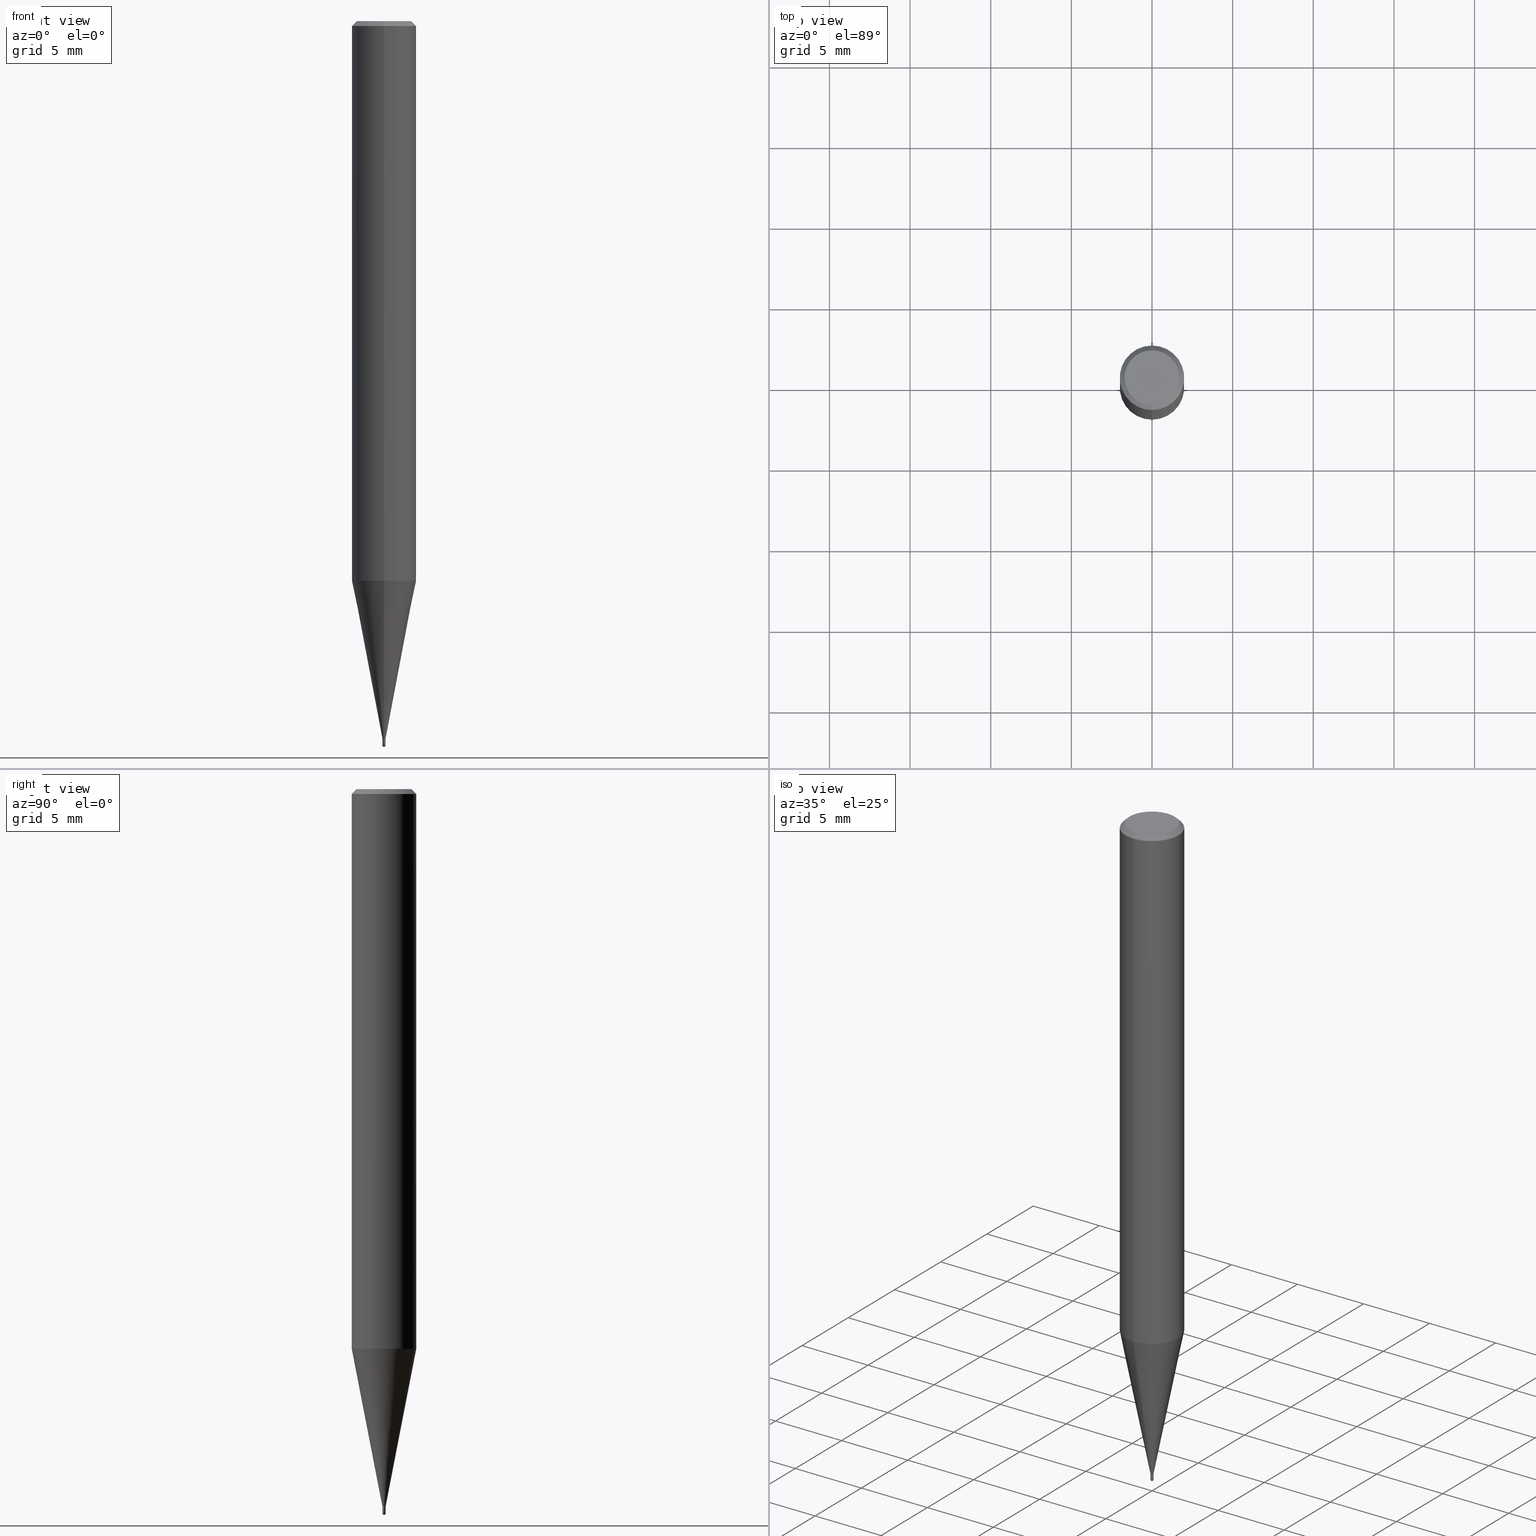
[diagram: canonical four-view strip — front | top / right | iso, engineering-drawing reading convention]
A machine part, canonical four-view strip (front | top / right | iso — engineering-drawing reading convention). The complete STEP part file that produces these views, byte-faithful:
ISO-10303-21;
HEADER;
FILE_DESCRIPTION(('no description'),'unknown implementation level');
FILE_NAME('CSELB2002-005-Huellk.stp','  ',('CIMSOURCE GmbH'),('CADClick - KiM GmbH - www.kimweb.de'),'unknown preprocess','ACIS','unknown authorization');
FILE_SCHEMA(('automotive_design'));
ENDSEC;
DATA;
#1=MECHANICAL_DESIGN_GEOMETRIC_PRESENTATION_REPRESENTATION(' ',(#14,#15,#16,#17,#18,#19,#20,#21,#22,#23,#24,#25,#26,#27,#28,#29,#30,#31,#32,#33,#34,#35,#36,#37,#38,#39,#40,#41,#42,#43,#44,#45,#46,#47,#48,#49,#50,#51,#52,#53,#54,#55,#56,#57,#58,#59,#60,#61,#62,#63,#64,#65,#66,#67,#68,#69,#70,#71,#72,#73,#74),#10);
#2=PRODUCT_DEFINITION_CONTEXT('',#75,'design');
#3=APPLICATION_PROTOCOL_DEFINITION('INTERNATIONAL STANDARD','automotive_design',1994,#75);
#4=PRODUCT_CATEGORY_RELATIONSHIP('NONE','NONE',#76,#77);
#5=SHAPE_DEFINITION_REPRESENTATION(#78,#79);
#6=PRODUCT_DEFINITION_CONTEXT('',#80,'design');
#7=APPLICATION_PROTOCOL_DEFINITION('INTERNATIONAL STANDARD','automotive_design',1994,#80);
#8=PRODUCT_CATEGORY_RELATIONSHIP('NONE','NONE',#81,#82);
#9=SHAPE_DEFINITION_REPRESENTATION(#83,#84);
#10= (GEOMETRIC_REPRESENTATION_CONTEXT(3)GLOBAL_UNCERTAINTY_ASSIGNED_CONTEXT((#87))GLOBAL_UNIT_ASSIGNED_CONTEXT((#89,#90,#91))REPRESENTATION_CONTEXT('NONE','WORKSPACE'));
#14=STYLED_ITEM('',(#93),#94);
#15=STYLED_ITEM('',(#95),#96);
#16=STYLED_ITEM('',(#97),#98);
#17=STYLED_ITEM('',(#99),#100);
#18=STYLED_ITEM('',(#101),#102);
#19=STYLED_ITEM('',(#103),#104);
#20=STYLED_ITEM('',(#105),#106);
#21=STYLED_ITEM('',(#107),#108);
#22=STYLED_ITEM('',(#109),#110);
#23=STYLED_ITEM('',(#111),#112);
#24=STYLED_ITEM('',(#113),#114);
#25=STYLED_ITEM('',(#115),#116);
#26=STYLED_ITEM('',(#117),#118);
#27=STYLED_ITEM('',(#119),#120);
#28=STYLED_ITEM('',(#121),#122);
#29=STYLED_ITEM('',(#123),#124);
#30=STYLED_ITEM('',(#125),#126);
#31=STYLED_ITEM('',(#127),#128);
#32=STYLED_ITEM('',(#129),#130);
#33=STYLED_ITEM('',(#131),#132);
#34=STYLED_ITEM('',(#133),#134);
#35=STYLED_ITEM('',(#135),#136);
#36=STYLED_ITEM('',(#137),#138);
#37=STYLED_ITEM('',(#139),#140);
#38=STYLED_ITEM('',(#141),#142);
#39=STYLED_ITEM('',(#143),#144);
#40=STYLED_ITEM('',(#145),#146);
#41=STYLED_ITEM('',(#147),#148);
#42=STYLED_ITEM('',(#149),#150);
#43=STYLED_ITEM('',(#151),#152);
#44=STYLED_ITEM('',(#153),#154);
#45=STYLED_ITEM('',(#155),#156);
#46=STYLED_ITEM('',(#157),#158);
#47=STYLED_ITEM('',(#159),#160);
#48=STYLED_ITEM('',(#161),#162);
#49=STYLED_ITEM('',(#163),#164);
#50=STYLED_ITEM('',(#165),#166);
#51=STYLED_ITEM('',(#167),#168);
#52=STYLED_ITEM('',(#169),#170);
#53=STYLED_ITEM('',(#171),#172);
#54=STYLED_ITEM('',(#173),#174);
#55=STYLED_ITEM('',(#175),#176);
#56=STYLED_ITEM('',(#177),#178);
#57=STYLED_ITEM('',(#179),#180);
#58=STYLED_ITEM('',(#181),#182);
#59=STYLED_ITEM('',(#183),#184);
#60=STYLED_ITEM('',(#185),#186);
#61=STYLED_ITEM('',(#187),#188);
#62=STYLED_ITEM('',(#189),#190);
#63=STYLED_ITEM('',(#191),#192);
#64=STYLED_ITEM('',(#193),#194);
#65=STYLED_ITEM('',(#195),#196);
#66=STYLED_ITEM('',(#197),#198);
#67=STYLED_ITEM('',(#199),#200);
#68=STYLED_ITEM('',(#201),#202);
#69=STYLED_ITEM('',(#203),#204);
#70=STYLED_ITEM('',(#205),#206);
#71=STYLED_ITEM('',(#207),#208);
#72=STYLED_ITEM('',(#209),#210);
#73=STYLED_ITEM('',(#211),#212);
#74=STYLED_ITEM('',(#213),#214);
#75=APPLICATION_CONTEXT(' ');
#76=PRODUCT_CATEGORY('part','NONE');
#77=PRODUCT_RELATED_PRODUCT_CATEGORY('detail',' ',(#215));
#78=PRODUCT_DEFINITION_SHAPE('NONE','NONE',#216);
#79=ADVANCED_BREP_SHAPE_REPRESENTATION('1',(#200,#217),#10);
#80=APPLICATION_CONTEXT(' ');
#81=PRODUCT_CATEGORY('part','NONE');
#82=PRODUCT_RELATED_PRODUCT_CATEGORY('detail',' ',(#218));
#83=PRODUCT_DEFINITION_SHAPE('NONE','NONE',#219);
#84=ADVANCED_BREP_SHAPE_REPRESENTATION('2',(#194,#220),#10);
#87=UNCERTAINTY_MEASURE_WITH_UNIT(LENGTH_MEASURE(1.0E-006),#89,'','');
#89= (CONVERSION_BASED_UNIT('MILLIMETRE',#223)LENGTH_UNIT()NAMED_UNIT(#226));
#90= (NAMED_UNIT(#228)PLANE_ANGLE_UNIT()SI_UNIT($,.RADIAN.));
#91= (NAMED_UNIT(#228)SOLID_ANGLE_UNIT()SI_UNIT($,.STERADIAN.));
#93=PRESENTATION_STYLE_ASSIGNMENT((#234));
#94=EDGE_CURVE('',#134,#150,#235,.T.);
#95=PRESENTATION_STYLE_ASSIGNMENT((#236));
#96=ADVANCED_FACE('',(#237),#238,.T.);
#97=PRESENTATION_STYLE_ASSIGNMENT((#239));
#98=VERTEX_POINT('',#240);
#99=PRESENTATION_STYLE_ASSIGNMENT((#241));
#100=EDGE_CURVE('',#98,#170,#242,.T.);
#101=PRESENTATION_STYLE_ASSIGNMENT((#243));
#102=EDGE_CURVE('',#106,#114,#244,.T.);
#103=PRESENTATION_STYLE_ASSIGNMENT((#245));
#104=EDGE_CURVE('',#180,#186,#246,.T.);
#105=PRESENTATION_STYLE_ASSIGNMENT((#247));
#106=VERTEX_POINT('',#248);
#107=PRESENTATION_STYLE_ASSIGNMENT((#249));
#108=EDGE_CURVE('',#132,#142,#250,.T.);
#109=PRESENTATION_STYLE_ASSIGNMENT((#251));
#110=ADVANCED_FACE('',(#252,#253),#254,.T.);
#111=PRESENTATION_STYLE_ASSIGNMENT((#255));
#112=EDGE_CURVE('',#140,#158,#256,.T.);
#113=PRESENTATION_STYLE_ASSIGNMENT((#257));
#114=VERTEX_POINT('',#258);
#115=PRESENTATION_STYLE_ASSIGNMENT((#259));
#116=EDGE_CURVE('',#98,#158,#260,.T.);
#117=PRESENTATION_STYLE_ASSIGNMENT((#261));
#118=EDGE_CURVE('',#158,#140,#262,.T.);
#119=PRESENTATION_STYLE_ASSIGNMENT((#263));
#120=EDGE_CURVE('',#98,#170,#264,.T.);
#121=PRESENTATION_STYLE_ASSIGNMENT((#265));
#122=EDGE_CURVE('',#126,#212,#266,.T.);
#123=PRESENTATION_STYLE_ASSIGNMENT((#267));
#124=EDGE_CURVE('',#142,#166,#268,.T.);
#125=PRESENTATION_STYLE_ASSIGNMENT((#269));
#126=VERTEX_POINT('',#270);
#127=PRESENTATION_STYLE_ASSIGNMENT((#271));
#128=EDGE_CURVE('',#166,#180,#272,.T.);
#129=PRESENTATION_STYLE_ASSIGNMENT((#273));
#130=EDGE_CURVE('',#180,#166,#274,.T.);
#131=PRESENTATION_STYLE_ASSIGNMENT((#275));
#132=VERTEX_POINT('',#276);
#133=PRESENTATION_STYLE_ASSIGNMENT((#277));
#134=VERTEX_POINT('',#278);
#135=PRESENTATION_STYLE_ASSIGNMENT((#279));
#136=ADVANCED_FACE('',(#280),#281,.T.);
#137=PRESENTATION_STYLE_ASSIGNMENT((#282));
#138=ADVANCED_FACE('',(#283),#284,.T.);
#139=PRESENTATION_STYLE_ASSIGNMENT((#285));
#140=VERTEX_POINT('',#286);
#141=PRESENTATION_STYLE_ASSIGNMENT((#287));
#142=VERTEX_POINT('',#288);
#143=PRESENTATION_STYLE_ASSIGNMENT((#289));
#144=ADVANCED_FACE('',(#290),#291,.T.);
#145=PRESENTATION_STYLE_ASSIGNMENT((#292));
#146=ADVANCED_FACE('',(#293),#294,.T.);
#147=PRESENTATION_STYLE_ASSIGNMENT((#295));
#148=EDGE_CURVE('',#114,#134,#296,.T.);
#149=PRESENTATION_STYLE_ASSIGNMENT((#297));
#150=VERTEX_POINT('',#298);
#151=PRESENTATION_STYLE_ASSIGNMENT((#299));
#152=ADVANCED_FACE('',(#300),#301,.T.);
#153=PRESENTATION_STYLE_ASSIGNMENT((#302));
#154=ADVANCED_FACE('',(#303),#304,.T.);
#155=PRESENTATION_STYLE_ASSIGNMENT((#305));
#156=EDGE_CURVE('',#170,#98,#306,.T.);
#157=PRESENTATION_STYLE_ASSIGNMENT((#307));
#158=VERTEX_POINT('',#308);
#159=PRESENTATION_STYLE_ASSIGNMENT((#309));
#160=EDGE_CURVE('',#150,#106,#310,.T.);
#161=PRESENTATION_STYLE_ASSIGNMENT((#311));
#162=EDGE_CURVE('',#150,#212,#312,.T.);
#163=PRESENTATION_STYLE_ASSIGNMENT((#313));
#164=EDGE_CURVE('',#206,#132,#314,.T.);
#165=PRESENTATION_STYLE_ASSIGNMENT((#315));
#166=VERTEX_POINT('',#316);
#167=PRESENTATION_STYLE_ASSIGNMENT((#317));
#168=ADVANCED_FACE('',(#318),#319,.T.);
#169=PRESENTATION_STYLE_ASSIGNMENT((#320));
#170=VERTEX_POINT('',#321);
#171=PRESENTATION_STYLE_ASSIGNMENT((#322));
#172=ADVANCED_FACE('',(#323),#324,.T.);
#173=PRESENTATION_STYLE_ASSIGNMENT((#325));
#174=ADVANCED_FACE('',(#326),#327,.T.);
#175=PRESENTATION_STYLE_ASSIGNMENT((#328));
#176=EDGE_CURVE('',#142,#186,#329,.T.);
#177=PRESENTATION_STYLE_ASSIGNMENT((#330));
#178=ADVANCED_FACE('',(#331),#332,.T.);
#179=PRESENTATION_STYLE_ASSIGNMENT((#333));
#180=VERTEX_POINT('',#334);
#181=PRESENTATION_STYLE_ASSIGNMENT((#335));
#182=EDGE_CURVE('',#212,#126,#336,.T.);
#183=PRESENTATION_STYLE_ASSIGNMENT((#337));
#184=EDGE_CURVE('',#134,#114,#338,.T.);
#185=PRESENTATION_STYLE_ASSIGNMENT((#339));
#186=VERTEX_POINT('',#340);
#187=PRESENTATION_STYLE_ASSIGNMENT((#341));
#188=EDGE_CURVE('',#132,#206,#342,.T.);
#189=PRESENTATION_STYLE_ASSIGNMENT((#343));
#190=EDGE_CURVE('',#186,#142,#344,.T.);
#191=PRESENTATION_STYLE_ASSIGNMENT((#345));
#192=EDGE_CURVE('',#140,#170,#346,.T.);
#193=PRESENTATION_STYLE_ASSIGNMENT((#347));
#194=MANIFOLD_SOLID_BREP('2',#348);
#195=PRESENTATION_STYLE_ASSIGNMENT((#349));
#196=ADVANCED_FACE('',(#350),#351,.T.);
#197=PRESENTATION_STYLE_ASSIGNMENT((#352));
#198=EDGE_CURVE('',#126,#106,#353,.T.);
#199=PRESENTATION_STYLE_ASSIGNMENT((#354));
#200=MANIFOLD_SOLID_BREP('1',#355);
#201=PRESENTATION_STYLE_ASSIGNMENT((#356));
#202=EDGE_CURVE('',#106,#150,#357,.T.);
#203=PRESENTATION_STYLE_ASSIGNMENT((#358));
#204=EDGE_CURVE('',#186,#206,#359,.T.);
#205=PRESENTATION_STYLE_ASSIGNMENT((#360));
#206=VERTEX_POINT('',#361);
#207=PRESENTATION_STYLE_ASSIGNMENT((#362));
#208=ADVANCED_FACE('',(#363),#364,.T.);
#209=PRESENTATION_STYLE_ASSIGNMENT((#365));
#210=ADVANCED_FACE('',(#366),#367,.T.);
#211=PRESENTATION_STYLE_ASSIGNMENT((#368));
#212=VERTEX_POINT('',#369);
#213=PRESENTATION_STYLE_ASSIGNMENT((#370));
#214=ADVANCED_FACE('',(#371),#372,.T.);
#215=PRODUCT('1','1','PART-1-DESC',(#373));
#216=PRODUCT_DEFINITION('NONE','NONE',#374,#2);
#217=AXIS2_PLACEMENT_3D('',#375,#376,#377);
#218=PRODUCT('2','2','PART-2-DESC',(#378));
#219=PRODUCT_DEFINITION('NONE','NONE',#379,#6);
#220=AXIS2_PLACEMENT_3D('',#380,#381,#382);
#223=LENGTH_MEASURE_WITH_UNIT(LENGTH_MEASURE(1.0),#383);
#226=DIMENSIONAL_EXPONENTS(1.0,0.0,0.0,0.0,0.0,0.0,0.0);
#228=DIMENSIONAL_EXPONENTS(0.0,0.0,0.0,0.0,0.0,0.0,0.0);
#234=CURVE_STYLE('',#384,POSITIVE_LENGTH_MEASURE(1.0E-006),#385);
#235=LINE('',#386,#387);
#236=SURFACE_STYLE_USAGE(.BOTH.,#388);
#237=FACE_OUTER_BOUND('',#389,.T.);
#238=CYLINDRICAL_SURFACE('',#390,0.09495);
#239=POINT_STYLE(' ',#391,POSITIVE_LENGTH_MEASURE(1.0E-006),#392);
#240=CARTESIAN_POINT('',(1.22460635382238E-017,-0.1,-44.9));
#241=CURVE_STYLE('',#393,POSITIVE_LENGTH_MEASURE(1.0E-006),#394);
#242=CIRCLE('',#395,0.1);
#243=CURVE_STYLE('',#396,POSITIVE_LENGTH_MEASURE(1.0E-006),#397);
#244=LINE('',#398,#399);
#245=CURVE_STYLE('',#400,POSITIVE_LENGTH_MEASURE(1.0E-006),#401);
#246=LINE('',#402,#403);
#247=POINT_STYLE(' ',#404,POSITIVE_LENGTH_MEASURE(1.0E-006),#405);
#248=CARTESIAN_POINT('',(0.0,0.09495,-44.5));
#249=CURVE_STYLE('',#406,POSITIVE_LENGTH_MEASURE(1.0E-006),#407);
#250=LINE('',#408,#409);
#251=SURFACE_STYLE_USAGE(.BOTH.,#410);
#252=FACE_OUTER_BOUND('',#411,.T.);
#253=FACE_BOUND('',#412,.T.);
#254=PLANE('',#413);
#255=CURVE_STYLE('',#414,POSITIVE_LENGTH_MEASURE(1.0E-006),#415);
#256=CIRCLE('',#416,0.0999);
#257=POINT_STYLE(' ',#417,POSITIVE_LENGTH_MEASURE(1.0E-006),#418);
#258=CARTESIAN_POINT('',(0.0,0.09495,-44.84));
#259=CURVE_STYLE('',#419,POSITIVE_LENGTH_MEASURE(1.0E-006),#420);
#260=LINE('',#421,#422);
#261=CURVE_STYLE('',#423,POSITIVE_LENGTH_MEASURE(1.0E-006),#424);
#262=CIRCLE('',#425,0.0999);
#263=CURVE_STYLE('',#426,POSITIVE_LENGTH_MEASURE(1.0E-006),#427);
#264=CIRCLE('',#428,0.1);
#265=CURVE_STYLE('',#429,POSITIVE_LENGTH_MEASURE(1.0E-006),#430);
#266=CIRCLE('',#431,1.99995);
#267=CURVE_STYLE('',#432,POSITIVE_LENGTH_MEASURE(1.0E-006),#433);
#268=LINE('',#434,#435);
#269=POINT_STYLE(' ',#436,POSITIVE_LENGTH_MEASURE(1.0E-006),#437);
#270=CARTESIAN_POINT('',(0.0,1.99995,-34.7));
#271=CURVE_STYLE('',#438,POSITIVE_LENGTH_MEASURE(1.0E-006),#439);
#272=CIRCLE('',#440,1.7);
#273=CURVE_STYLE('',#441,POSITIVE_LENGTH_MEASURE(1.0E-006),#442);
#274=CIRCLE('',#443,1.7);
#275=POINT_STYLE(' ',#444,POSITIVE_LENGTH_MEASURE(1.0E-006),#445);
#276=CARTESIAN_POINT('',(2.44921270764475E-016,-2.0,-34.7));
#277=POINT_STYLE(' ',#446,POSITIVE_LENGTH_MEASURE(1.0E-006),#447);
#278=CARTESIAN_POINT('',(1.16276373295435E-017,-0.09495,-44.84));
#279=SURFACE_STYLE_USAGE(.BOTH.,#448);
#280=FACE_OUTER_BOUND('',#449,.T.);
#281=SPHERICAL_SURFACE('',#450,0.1);
#282=SURFACE_STYLE_USAGE(.BOTH.,#451);
#283=FACE_OUTER_BOUND('',#452,.T.);
#284=CONICAL_SURFACE('',#453,0.09995,0.00166666512345941);
#285=POINT_STYLE(' ',#454,POSITIVE_LENGTH_MEASURE(1.0E-006),#455);
#286=CARTESIAN_POINT('',(0.0,0.0999,-44.84));
#287=POINT_STYLE(' ',#456,POSITIVE_LENGTH_MEASURE(1.0E-006),#457);
#288=CARTESIAN_POINT('',(2.44921270764475E-016,-2.0,-0.299999999999997));
#289=SURFACE_STYLE_USAGE(.BOTH.,#458);
#290=FACE_OUTER_BOUND('',#459,.T.);
#291=PLANE('',#460);
#292=SURFACE_STYLE_USAGE(.BOTH.,#461);
#293=FACE_OUTER_BOUND('',#462,.T.);
#294=CONICAL_SURFACE('',#463,0.09995,0.00166666512345941);
#295=CURVE_STYLE('',#464,POSITIVE_LENGTH_MEASURE(1.0E-006),#465);
#296=CIRCLE('',#466,0.09495);
#297=POINT_STYLE(' ',#467,POSITIVE_LENGTH_MEASURE(1.0E-006),#468);
#298=CARTESIAN_POINT('',(1.16276373295435E-017,-0.09495,-44.5));
#299=SURFACE_STYLE_USAGE(.BOTH.,#469);
#300=FACE_OUTER_BOUND('',#470,.T.);
#301=CYLINDRICAL_SURFACE('',#471,2.0);
#302=SURFACE_STYLE_USAGE(.BOTH.,#472);
#303=FACE_OUTER_BOUND('',#473,.T.);
#304=CYLINDRICAL_SURFACE('',#474,2.0);
#305=CURVE_STYLE('',#475,POSITIVE_LENGTH_MEASURE(1.0E-006),#476);
#306=CIRCLE('',#477,0.1);
#307=POINT_STYLE(' ',#478,POSITIVE_LENGTH_MEASURE(1.0E-006),#479);
#308=CARTESIAN_POINT('',(1.22338174746855E-017,-0.0999,-44.84));
#309=CURVE_STYLE('',#480,POSITIVE_LENGTH_MEASURE(1.0E-006),#481);
#310=CIRCLE('',#482,0.09495);
#311=CURVE_STYLE('',#483,POSITIVE_LENGTH_MEASURE(1.0E-006),#484);
#312=LINE('',#485,#486);
#313=CURVE_STYLE('',#487,POSITIVE_LENGTH_MEASURE(1.0E-006),#488);
#314=CIRCLE('',#489,2.0);
#315=POINT_STYLE(' ',#490,POSITIVE_LENGTH_MEASURE(1.0E-006),#491);
#316=CARTESIAN_POINT('',(2.08183080149804E-016,-1.7,0.0));
#317=SURFACE_STYLE_USAGE(.BOTH.,#492);
#318=FACE_OUTER_BOUND('',#493,.T.);
#319=SPHERICAL_SURFACE('',#494,0.1);
#320=POINT_STYLE(' ',#495,POSITIVE_LENGTH_MEASURE(1.0E-006),#496);
#321=CARTESIAN_POINT('',(0.0,0.1,-44.9));
#322=SURFACE_STYLE_USAGE(.BOTH.,#497);
#323=FACE_OUTER_BOUND('',#498,.T.);
#324=CONICAL_SURFACE('',#499,1.04745,0.191993392580482);
#325=SURFACE_STYLE_USAGE(.BOTH.,#500);
#326=FACE_OUTER_BOUND('',#501,.T.);
#327=CONICAL_SURFACE('',#502,1.04745,0.191993392580482);
#328=CURVE_STYLE('',#503,POSITIVE_LENGTH_MEASURE(1.0E-006),#504);
#329=CIRCLE('',#505,2.0);
#330=SURFACE_STYLE_USAGE(.BOTH.,#506);
#331=FACE_OUTER_BOUND('',#507,.T.);
#332=PLANE('',#508);
#333=POINT_STYLE(' ',#509,POSITIVE_LENGTH_MEASURE(1.0E-006),#510);
#334=CARTESIAN_POINT('',(0.0,1.7,0.0));
#335=CURVE_STYLE('',#511,POSITIVE_LENGTH_MEASURE(1.0E-006),#512);
#336=CIRCLE('',#513,1.99995);
#337=CURVE_STYLE('',#514,POSITIVE_LENGTH_MEASURE(1.0E-006),#515);
#338=CIRCLE('',#516,0.09495);
#339=POINT_STYLE(' ',#517,POSITIVE_LENGTH_MEASURE(1.0E-006),#518);
#340=CARTESIAN_POINT('',(0.0,2.0,-0.299999999999997));
#341=CURVE_STYLE('',#519,POSITIVE_LENGTH_MEASURE(1.0E-006),#520);
#342=CIRCLE('',#521,2.0);
#343=CURVE_STYLE('',#522,POSITIVE_LENGTH_MEASURE(1.0E-006),#523);
#344=CIRCLE('',#524,2.0);
#345=CURVE_STYLE('',#525,POSITIVE_LENGTH_MEASURE(1.0E-006),#526);
#346=LINE('',#527,#528);
#347=SURFACE_STYLE_USAGE(.BOTH.,#529);
#348=CLOSED_SHELL('',(#136,#138,#178,#146,#168));
#349=SURFACE_STYLE_USAGE(.BOTH.,#530);
#350=FACE_OUTER_BOUND('',#531,.T.);
#351=CONICAL_SURFACE('',#532,1.85,0.785398163397453);
#352=CURVE_STYLE('',#533,POSITIVE_LENGTH_MEASURE(1.0E-006),#534);
#353=LINE('',#535,#536);
#354=SURFACE_STYLE_USAGE(.BOTH.,#537);
#355=CLOSED_SHELL('',(#208,#174,#152,#196,#110,#214,#210,#154,#172,#96,#144));
#356=CURVE_STYLE('',#538,POSITIVE_LENGTH_MEASURE(1.0E-006),#539);
#357=CIRCLE('',#540,0.09495);
#358=CURVE_STYLE('',#541,POSITIVE_LENGTH_MEASURE(1.0E-006),#542);
#359=LINE('',#543,#544);
#360=POINT_STYLE(' ',#545,POSITIVE_LENGTH_MEASURE(1.0E-006),#546);
#361=CARTESIAN_POINT('',(0.0,2.0,-34.7));
#362=SURFACE_STYLE_USAGE(.BOTH.,#547);
#363=FACE_OUTER_BOUND('',#548,.T.);
#364=CYLINDRICAL_SURFACE('',#549,0.09495);
#365=SURFACE_STYLE_USAGE(.BOTH.,#550);
#366=FACE_OUTER_BOUND('',#551,.T.);
#367=CONICAL_SURFACE('',#552,1.85,0.785398163397453);
#368=POINT_STYLE(' ',#553,POSITIVE_LENGTH_MEASURE(1.0E-006),#554);
#369=CARTESIAN_POINT('',(2.44915147732706E-016,-1.99995,-34.7));
#370=SURFACE_STYLE_USAGE(.BOTH.,#555);
#371=FACE_OUTER_BOUND('',#556,.T.);
#372=PLANE('',#557);
#373=PRODUCT_CONTEXT('',#75,'mechanical');
#374=PRODUCT_DEFINITION_FORMATION_WITH_SPECIFIED_SOURCE(' ','NONE',#215,.NOT_KNOWN.);
#375=CARTESIAN_POINT('',(0.0,0.0,0.0));
#376=DIRECTION('',(0.0,0.0,1.0));
#377=DIRECTION('',(1.0,0.0,0.0));
#378=PRODUCT_CONTEXT('',#80,'mechanical');
#379=PRODUCT_DEFINITION_FORMATION_WITH_SPECIFIED_SOURCE(' ','NONE',#218,.NOT_KNOWN.);
#380=CARTESIAN_POINT('',(0.0,0.0,0.0));
#381=DIRECTION('',(0.0,0.0,1.0));
#382=DIRECTION('',(1.0,0.0,0.0));
#383= (NAMED_UNIT(#226)LENGTH_UNIT()SI_UNIT(.MILLI.,.METRE.));
#384=DRAUGHTING_PRE_DEFINED_CURVE_FONT('continuous');
#385=COLOUR_RGB('',0.498039215803146,0.498039215803146,0.498039215803146);
#386=CARTESIAN_POINT('',(1.16276373295435E-017,-0.09495,-44.67));
#387=VECTOR('',#559,1.0);
#388=SURFACE_SIDE_STYLE('',(#560));
#389=EDGE_LOOP('',(#561,#562,#563,#564));
#390=AXIS2_PLACEMENT_3D('',#565,#566,#567);
#391=PRE_DEFINED_MARKER('');
#392=COLOUR_RGB('',0.800000011920929,0.800000011920929,0.800000011920929);
#393=DRAUGHTING_PRE_DEFINED_CURVE_FONT('continuous');
#394=COLOUR_RGB('',0.800000011920929,0.800000011920929,0.800000011920929);
#395=AXIS2_PLACEMENT_3D('',#568,#569,#570);
#396=DRAUGHTING_PRE_DEFINED_CURVE_FONT('continuous');
#397=COLOUR_RGB('',0.498039215803146,0.498039215803146,0.498039215803146);
#398=CARTESIAN_POINT('',(-1.16276373295435E-017,0.09495,-44.67));
#399=VECTOR('',#571,1.0);
#400=DRAUGHTING_PRE_DEFINED_CURVE_FONT('continuous');
#401=COLOUR_RGB('',0.498039215803146,0.498039215803146,0.498039215803146);
#402=CARTESIAN_POINT('',(-2.2655217545714E-016,1.85,-0.149999999999999));
#403=VECTOR('',#572,1.0);
#404=PRE_DEFINED_MARKER('');
#405=COLOUR_RGB('',0.498039215803146,0.498039215803146,0.498039215803146);
#406=DRAUGHTING_PRE_DEFINED_CURVE_FONT('continuous');
#407=COLOUR_RGB('',0.498039215803146,0.498039215803146,0.498039215803146);
#408=CARTESIAN_POINT('',(2.44921270764475E-016,-2.0,-17.5));
#409=VECTOR('',#573,1.0);
#410=SURFACE_SIDE_STYLE('',(#574));
#411=EDGE_LOOP('',(#575,#576));
#412=EDGE_LOOP('',(#577,#578));
#413=AXIS2_PLACEMENT_3D('',#579,#580,#581);
#414=DRAUGHTING_PRE_DEFINED_CURVE_FONT('continuous');
#415=COLOUR_RGB('',0.800000011920929,0.800000011920929,0.800000011920929);
#416=AXIS2_PLACEMENT_3D('',#582,#583,#584);
#417=PRE_DEFINED_MARKER('');
#418=COLOUR_RGB('',0.498039215803146,0.498039215803146,0.498039215803146);
#419=DRAUGHTING_PRE_DEFINED_CURVE_FONT('continuous');
#420=COLOUR_RGB('',0.800000011920929,0.800000011920929,0.800000011920929);
#421=CARTESIAN_POINT('',(1.22399405064547E-017,-0.09995,-44.87));
#422=VECTOR('',#585,1.0);
#423=DRAUGHTING_PRE_DEFINED_CURVE_FONT('continuous');
#424=COLOUR_RGB('',0.800000011920929,0.800000011920929,0.800000011920929);
#425=AXIS2_PLACEMENT_3D('',#586,#587,#588);
#426=DRAUGHTING_PRE_DEFINED_CURVE_FONT('continuous');
#427=COLOUR_RGB('',0.800000011920929,0.800000011920929,0.800000011920929);
#428=AXIS2_PLACEMENT_3D('',#589,#590,#591);
#429=DRAUGHTING_PRE_DEFINED_CURVE_FONT('continuous');
#430=COLOUR_RGB('',0.498039215803146,0.498039215803146,0.498039215803146);
#431=AXIS2_PLACEMENT_3D('',#592,#593,#594);
#432=DRAUGHTING_PRE_DEFINED_CURVE_FONT('continuous');
#433=COLOUR_RGB('',0.498039215803146,0.498039215803146,0.498039215803146);
#434=CARTESIAN_POINT('',(2.2655217545714E-016,-1.85,-0.149999999999999));
#435=VECTOR('',#595,1.0);
#436=PRE_DEFINED_MARKER('');
#437=COLOUR_RGB('',0.498039215803146,0.498039215803146,0.498039215803146);
#438=DRAUGHTING_PRE_DEFINED_CURVE_FONT('continuous');
#439=COLOUR_RGB('',0.498039215803146,0.498039215803146,0.498039215803146);
#440=AXIS2_PLACEMENT_3D('',#596,#597,#598);
#441=DRAUGHTING_PRE_DEFINED_CURVE_FONT('continuous');
#442=COLOUR_RGB('',0.498039215803146,0.498039215803146,0.498039215803146);
#443=AXIS2_PLACEMENT_3D('',#599,#600,#601);
#444=PRE_DEFINED_MARKER('');
#445=COLOUR_RGB('',0.498039215803146,0.498039215803146,0.498039215803146);
#446=PRE_DEFINED_MARKER('');
#447=COLOUR_RGB('',0.498039215803146,0.498039215803146,0.498039215803146);
#448=SURFACE_SIDE_STYLE('',(#602));
#449=EDGE_LOOP('',(#603,#604));
#450=AXIS2_PLACEMENT_3D('',#605,#606,#607);
#451=SURFACE_SIDE_STYLE('',(#608));
#452=EDGE_LOOP('',(#609,#610,#611,#612));
#453=AXIS2_PLACEMENT_3D('',#613,#614,#615);
#454=PRE_DEFINED_MARKER('');
#455=COLOUR_RGB('',0.800000011920929,0.800000011920929,0.800000011920929);
#456=PRE_DEFINED_MARKER('');
#457=COLOUR_RGB('',0.498039215803146,0.498039215803146,0.498039215803146);
#458=SURFACE_SIDE_STYLE('',(#616));
#459=EDGE_LOOP('',(#617,#618));
#460=AXIS2_PLACEMENT_3D('',#619,#620,#621);
#461=SURFACE_SIDE_STYLE('',(#622));
#462=EDGE_LOOP('',(#623,#624,#625,#626));
#463=AXIS2_PLACEMENT_3D('',#627,#628,#629);
#464=DRAUGHTING_PRE_DEFINED_CURVE_FONT('continuous');
#465=COLOUR_RGB('',0.498039215803146,0.498039215803146,0.498039215803146);
#466=AXIS2_PLACEMENT_3D('',#630,#631,#632);
#467=PRE_DEFINED_MARKER('');
#468=COLOUR_RGB('',0.498039215803146,0.498039215803146,0.498039215803146);
#469=SURFACE_SIDE_STYLE('',(#633));
#470=EDGE_LOOP('',(#634,#635,#636,#637));
#471=AXIS2_PLACEMENT_3D('',#638,#639,#640);
#472=SURFACE_SIDE_STYLE('',(#641));
#473=EDGE_LOOP('',(#642,#643,#644,#645));
#474=AXIS2_PLACEMENT_3D('',#646,#647,#648);
#475=DRAUGHTING_PRE_DEFINED_CURVE_FONT('continuous');
#476=COLOUR_RGB('',0.800000011920929,0.800000011920929,0.800000011920929);
#477=AXIS2_PLACEMENT_3D('',#649,#650,#651);
#478=PRE_DEFINED_MARKER('');
#479=COLOUR_RGB('',0.800000011920929,0.800000011920929,0.800000011920929);
#480=DRAUGHTING_PRE_DEFINED_CURVE_FONT('continuous');
#481=COLOUR_RGB('',0.498039215803146,0.498039215803146,0.498039215803146);
#482=AXIS2_PLACEMENT_3D('',#652,#653,#654);
#483=DRAUGHTING_PRE_DEFINED_CURVE_FONT('continuous');
#484=COLOUR_RGB('',0.498039215803146,0.498039215803146,0.498039215803146);
#485=CARTESIAN_POINT('',(1.28271392531125E-016,-1.04745,-39.6));
#486=VECTOR('',#655,1.0);
#487=DRAUGHTING_PRE_DEFINED_CURVE_FONT('continuous');
#488=COLOUR_RGB('',0.498039215803146,0.498039215803146,0.498039215803146);
#489=AXIS2_PLACEMENT_3D('',#656,#657,#658);
#490=PRE_DEFINED_MARKER('');
#491=COLOUR_RGB('',0.498039215803146,0.498039215803146,0.498039215803146);
#492=SURFACE_SIDE_STYLE('',(#659));
#493=EDGE_LOOP('',(#660,#661));
#494=AXIS2_PLACEMENT_3D('',#662,#663,#664);
#495=PRE_DEFINED_MARKER('');
#496=COLOUR_RGB('',0.800000011920929,0.800000011920929,0.800000011920929);
#497=SURFACE_SIDE_STYLE('',(#665));
#498=EDGE_LOOP('',(#666,#667,#668,#669));
#499=AXIS2_PLACEMENT_3D('',#670,#671,#672);
#500=SURFACE_SIDE_STYLE('',(#673));
#501=EDGE_LOOP('',(#674,#675,#676,#677));
#502=AXIS2_PLACEMENT_3D('',#678,#679,#680);
#503=DRAUGHTING_PRE_DEFINED_CURVE_FONT('continuous');
#504=COLOUR_RGB('',0.498039215803146,0.498039215803146,0.498039215803146);
#505=AXIS2_PLACEMENT_3D('',#681,#682,#683);
#506=SURFACE_SIDE_STYLE('',(#684));
#507=EDGE_LOOP('',(#685,#686));
#508=AXIS2_PLACEMENT_3D('',#687,#688,#689);
#509=PRE_DEFINED_MARKER('');
#510=COLOUR_RGB('',0.498039215803146,0.498039215803146,0.498039215803146);
#511=DRAUGHTING_PRE_DEFINED_CURVE_FONT('continuous');
#512=COLOUR_RGB('',0.498039215803146,0.498039215803146,0.498039215803146);
#513=AXIS2_PLACEMENT_3D('',#690,#691,#692);
#514=DRAUGHTING_PRE_DEFINED_CURVE_FONT('continuous');
#515=COLOUR_RGB('',0.498039215803146,0.498039215803146,0.498039215803146);
#516=AXIS2_PLACEMENT_3D('',#693,#694,#695);
#517=PRE_DEFINED_MARKER('');
#518=COLOUR_RGB('',0.498039215803146,0.498039215803146,0.498039215803146);
#519=DRAUGHTING_PRE_DEFINED_CURVE_FONT('continuous');
#520=COLOUR_RGB('',0.498039215803146,0.498039215803146,0.498039215803146);
#521=AXIS2_PLACEMENT_3D('',#696,#697,#698);
#522=DRAUGHTING_PRE_DEFINED_CURVE_FONT('continuous');
#523=COLOUR_RGB('',0.498039215803146,0.498039215803146,0.498039215803146);
#524=AXIS2_PLACEMENT_3D('',#699,#700,#701);
#525=DRAUGHTING_PRE_DEFINED_CURVE_FONT('continuous');
#526=COLOUR_RGB('',0.800000011920929,0.800000011920929,0.800000011920929);
#527=CARTESIAN_POINT('',(-1.22399405064547E-017,0.09995,-44.87));
#528=VECTOR('',#702,1.0);
#529=SURFACE_SIDE_STYLE('',(#703));
#530=SURFACE_SIDE_STYLE('',(#704));
#531=EDGE_LOOP('',(#705,#706,#707,#708));
#532=AXIS2_PLACEMENT_3D('',#709,#710,#711);
#533=DRAUGHTING_PRE_DEFINED_CURVE_FONT('continuous');
#534=COLOUR_RGB('',0.498039215803146,0.498039215803146,0.498039215803146);
#535=CARTESIAN_POINT('',(-1.28271392531125E-016,1.04745,-39.6));
#536=VECTOR('',#712,1.0);
#537=SURFACE_SIDE_STYLE('',(#713));
#538=DRAUGHTING_PRE_DEFINED_CURVE_FONT('continuous');
#539=COLOUR_RGB('',0.498039215803146,0.498039215803146,0.498039215803146);
#540=AXIS2_PLACEMENT_3D('',#714,#715,#716);
#541=DRAUGHTING_PRE_DEFINED_CURVE_FONT('continuous');
#542=COLOUR_RGB('',0.498039215803146,0.498039215803146,0.498039215803146);
#543=CARTESIAN_POINT('',(-2.44921270764475E-016,2.0,-17.5));
#544=VECTOR('',#717,1.0);
#545=PRE_DEFINED_MARKER('');
#546=COLOUR_RGB('',0.498039215803146,0.498039215803146,0.498039215803146);
#547=SURFACE_SIDE_STYLE('',(#718));
#548=EDGE_LOOP('',(#719,#720,#721,#722));
#549=AXIS2_PLACEMENT_3D('',#723,#724,#725);
#550=SURFACE_SIDE_STYLE('',(#726));
#551=EDGE_LOOP('',(#727,#728,#729,#730));
#552=AXIS2_PLACEMENT_3D('',#731,#732,#733);
#553=PRE_DEFINED_MARKER('');
#554=COLOUR_RGB('',0.498039215803146,0.498039215803146,0.498039215803146);
#555=SURFACE_SIDE_STYLE('',(#734));
#556=EDGE_LOOP('',(#735,#736));
#557=AXIS2_PLACEMENT_3D('',#737,#738,#739);
#559=DIRECTION('',(-0.0,-0.0,1.0));
#560=SURFACE_STYLE_FILL_AREA(#740);
#561=ORIENTED_EDGE('',*,*,#102,.T.);
#562=ORIENTED_EDGE('',*,*,#184,.F.);
#563=ORIENTED_EDGE('',*,*,#94,.T.);
#564=ORIENTED_EDGE('',*,*,#160,.T.);
#565=CARTESIAN_POINT('',(0.0,0.0,-44.67));
#566=DIRECTION('',(-0.0,-0.0,1.0));
#567=DIRECTION('',(0.0,1.0,0.0));
#568=CARTESIAN_POINT('',(0.0,0.0,-44.9));
#569=DIRECTION('',(0.0,0.0,-1.0));
#570=DIRECTION('',(0.0,1.0,0.0));
#571=DIRECTION('',(0.0,0.0,-1.0));
#572=DIRECTION('',(-8.6592745707194E-017,0.707106781186551,-0.707106781186544));
#573=DIRECTION('',(-0.0,-0.0,1.0));
#574=SURFACE_STYLE_FILL_AREA(#741);
#575=ORIENTED_EDGE('',*,*,#164,.T.);
#576=ORIENTED_EDGE('',*,*,#188,.T.);
#577=ORIENTED_EDGE('',*,*,#122,.F.);
#578=ORIENTED_EDGE('',*,*,#182,.F.);
#579=CARTESIAN_POINT('',(0.0,1.0,-34.7));
#580=DIRECTION('',(0.0,0.0,-1.0));
#581=DIRECTION('',(0.0,1.0,0.0));
#582=CARTESIAN_POINT('',(0.0,0.0,-44.84));
#583=DIRECTION('',(0.0,0.0,-1.0));
#584=DIRECTION('',(0.0,1.0,0.0));
#585=DIRECTION('',(-2.041007754973E-019,0.00166666435185672,0.999998611114005));
#586=CARTESIAN_POINT('',(0.0,0.0,-44.84));
#587=DIRECTION('',(0.0,0.0,-1.0));
#588=DIRECTION('',(0.0,1.0,0.0));
#589=CARTESIAN_POINT('',(0.0,0.0,-44.9));
#590=DIRECTION('',(1.0,0.0,1.22460635382236E-016));
#591=DIRECTION('',(-1.22460635382236E-016,0.0,1.0));
#592=CARTESIAN_POINT('',(0.0,0.0,-34.7));
#593=DIRECTION('',(0.0,0.0,-1.0));
#594=DIRECTION('',(0.0,1.0,0.0));
#595=DIRECTION('',(-8.6592745707194E-017,0.707106781186551,0.707106781186544));
#596=CARTESIAN_POINT('',(0.0,0.0,0.0));
#597=DIRECTION('',(0.0,0.0,-1.0));
#598=DIRECTION('',(0.0,1.0,0.0));
#599=CARTESIAN_POINT('',(0.0,0.0,0.0));
#600=DIRECTION('',(0.0,0.0,-1.0));
#601=DIRECTION('',(0.0,1.0,0.0));
#602=SURFACE_STYLE_FILL_AREA(#742);
#603=ORIENTED_EDGE('',*,*,#120,.F.);
#604=ORIENTED_EDGE('',*,*,#100,.T.);
#605=CARTESIAN_POINT('',(0.0,0.0,-44.9));
#606=DIRECTION('',(0.0,1.0,0.0));
#607=DIRECTION('',(0.0,0.0,-1.0));
#608=SURFACE_STYLE_FILL_AREA(#743);
#609=ORIENTED_EDGE('',*,*,#192,.F.);
#610=ORIENTED_EDGE('',*,*,#112,.T.);
#611=ORIENTED_EDGE('',*,*,#116,.F.);
#612=ORIENTED_EDGE('',*,*,#156,.F.);
#613=CARTESIAN_POINT('',(0.0,0.0,-44.87));
#614=DIRECTION('',(0.0,-0.0,-1.0));
#615=DIRECTION('',(0.0,1.0,0.0));
#616=SURFACE_STYLE_FILL_AREA(#744);
#617=ORIENTED_EDGE('',*,*,#148,.T.);
#618=ORIENTED_EDGE('',*,*,#184,.T.);
#619=CARTESIAN_POINT('',(0.0,0.047475,-44.84));
#620=DIRECTION('',(0.0,0.0,-1.0));
#621=DIRECTION('',(0.0,1.0,0.0));
#622=SURFACE_STYLE_FILL_AREA(#745);
#623=ORIENTED_EDGE('',*,*,#192,.T.);
#624=ORIENTED_EDGE('',*,*,#100,.F.);
#625=ORIENTED_EDGE('',*,*,#116,.T.);
#626=ORIENTED_EDGE('',*,*,#118,.T.);
#627=CARTESIAN_POINT('',(0.0,0.0,-44.87));
#628=DIRECTION('',(0.0,-0.0,-1.0));
#629=DIRECTION('',(0.0,1.0,0.0));
#630=CARTESIAN_POINT('',(0.0,0.0,-44.84));
#631=DIRECTION('',(0.0,0.0,-1.0));
#632=DIRECTION('',(0.0,1.0,0.0));
#633=SURFACE_STYLE_FILL_AREA(#746);
#634=ORIENTED_EDGE('',*,*,#204,.F.);
#635=ORIENTED_EDGE('',*,*,#190,.T.);
#636=ORIENTED_EDGE('',*,*,#108,.F.);
#637=ORIENTED_EDGE('',*,*,#164,.F.);
#638=CARTESIAN_POINT('',(0.0,0.0,-17.5));
#639=DIRECTION('',(-0.0,-0.0,1.0));
#640=DIRECTION('',(0.0,1.0,0.0));
#641=SURFACE_STYLE_FILL_AREA(#747);
#642=ORIENTED_EDGE('',*,*,#204,.T.);
#643=ORIENTED_EDGE('',*,*,#188,.F.);
#644=ORIENTED_EDGE('',*,*,#108,.T.);
#645=ORIENTED_EDGE('',*,*,#176,.T.);
#646=CARTESIAN_POINT('',(0.0,0.0,-17.5));
#647=DIRECTION('',(-0.0,-0.0,1.0));
#648=DIRECTION('',(0.0,1.0,0.0));
#649=CARTESIAN_POINT('',(0.0,0.0,-44.9));
#650=DIRECTION('',(0.0,0.0,-1.0));
#651=DIRECTION('',(0.0,1.0,0.0));
#652=CARTESIAN_POINT('',(0.0,0.0,-44.5));
#653=DIRECTION('',(0.0,0.0,-1.0));
#654=DIRECTION('',(0.0,1.0,0.0));
#655=DIRECTION('',(2.33674533048507E-017,-0.190816038410332,0.981625814394358));
#656=CARTESIAN_POINT('',(0.0,0.0,-34.7));
#657=DIRECTION('',(0.0,0.0,-1.0));
#658=DIRECTION('',(0.0,1.0,0.0));
#659=SURFACE_STYLE_FILL_AREA(#748);
#660=ORIENTED_EDGE('',*,*,#120,.T.);
#661=ORIENTED_EDGE('',*,*,#156,.T.);
#662=CARTESIAN_POINT('',(0.0,0.0,-44.9));
#663=DIRECTION('',(0.0,1.0,0.0));
#664=DIRECTION('',(0.0,0.0,-1.0));
#665=SURFACE_STYLE_FILL_AREA(#749);
#666=ORIENTED_EDGE('',*,*,#198,.T.);
#667=ORIENTED_EDGE('',*,*,#160,.F.);
#668=ORIENTED_EDGE('',*,*,#162,.T.);
#669=ORIENTED_EDGE('',*,*,#182,.T.);
#670=CARTESIAN_POINT('',(0.0,0.0,-39.6));
#671=DIRECTION('',(-0.0,-0.0,1.0));
#672=DIRECTION('',(0.0,1.0,0.0));
#673=SURFACE_STYLE_FILL_AREA(#750);
#674=ORIENTED_EDGE('',*,*,#198,.F.);
#675=ORIENTED_EDGE('',*,*,#122,.T.);
#676=ORIENTED_EDGE('',*,*,#162,.F.);
#677=ORIENTED_EDGE('',*,*,#202,.F.);
#678=CARTESIAN_POINT('',(0.0,0.0,-39.6));
#679=DIRECTION('',(-0.0,-0.0,1.0));
#680=DIRECTION('',(0.0,1.0,0.0));
#681=CARTESIAN_POINT('',(0.0,0.0,-0.299999999999997));
#682=DIRECTION('',(0.0,0.0,-1.0));
#683=DIRECTION('',(0.0,1.0,0.0));
#684=SURFACE_STYLE_FILL_AREA(#751);
#685=ORIENTED_EDGE('',*,*,#112,.F.);
#686=ORIENTED_EDGE('',*,*,#118,.F.);
#687=CARTESIAN_POINT('',(0.0,0.04995,-44.84));
#688=DIRECTION('',(-0.0,0.0,1.0));
#689=DIRECTION('',(0.0,-1.0,0.0));
#690=CARTESIAN_POINT('',(0.0,0.0,-34.7));
#691=DIRECTION('',(0.0,0.0,-1.0));
#692=DIRECTION('',(0.0,1.0,0.0));
#693=CARTESIAN_POINT('',(0.0,0.0,-44.84));
#694=DIRECTION('',(0.0,0.0,-1.0));
#695=DIRECTION('',(0.0,1.0,0.0));
#696=CARTESIAN_POINT('',(0.0,0.0,-34.7));
#697=DIRECTION('',(0.0,0.0,-1.0));
#698=DIRECTION('',(0.0,1.0,0.0));
#699=CARTESIAN_POINT('',(0.0,0.0,-0.299999999999997));
#700=DIRECTION('',(0.0,0.0,-1.0));
#701=DIRECTION('',(0.0,1.0,0.0));
#702=DIRECTION('',(-2.041007754973E-019,0.00166666435185672,-0.999998611114005));
#703=SURFACE_STYLE_FILL_AREA(#752);
#704=SURFACE_STYLE_FILL_AREA(#753);
#705=ORIENTED_EDGE('',*,*,#104,.F.);
#706=ORIENTED_EDGE('',*,*,#130,.T.);
#707=ORIENTED_EDGE('',*,*,#124,.F.);
#708=ORIENTED_EDGE('',*,*,#190,.F.);
#709=CARTESIAN_POINT('',(0.0,0.0,-0.149999999999999));
#710=DIRECTION('',(0.0,-0.0,-1.0));
#711=DIRECTION('',(0.0,1.0,0.0));
#712=DIRECTION('',(2.33674533048507E-017,-0.190816038410332,-0.981625814394358));
#713=SURFACE_STYLE_FILL_AREA(#754);
#714=CARTESIAN_POINT('',(0.0,0.0,-44.5));
#715=DIRECTION('',(0.0,0.0,-1.0));
#716=DIRECTION('',(0.0,1.0,0.0));
#717=DIRECTION('',(0.0,0.0,-1.0));
#718=SURFACE_STYLE_FILL_AREA(#755);
#719=ORIENTED_EDGE('',*,*,#102,.F.);
#720=ORIENTED_EDGE('',*,*,#202,.T.);
#721=ORIENTED_EDGE('',*,*,#94,.F.);
#722=ORIENTED_EDGE('',*,*,#148,.F.);
#723=CARTESIAN_POINT('',(0.0,0.0,-44.67));
#724=DIRECTION('',(-0.0,-0.0,1.0));
#725=DIRECTION('',(0.0,1.0,0.0));
#726=SURFACE_STYLE_FILL_AREA(#756);
#727=ORIENTED_EDGE('',*,*,#104,.T.);
#728=ORIENTED_EDGE('',*,*,#176,.F.);
#729=ORIENTED_EDGE('',*,*,#124,.T.);
#730=ORIENTED_EDGE('',*,*,#128,.T.);
#731=CARTESIAN_POINT('',(0.0,0.0,-0.149999999999999));
#732=DIRECTION('',(0.0,-0.0,-1.0));
#733=DIRECTION('',(0.0,1.0,0.0));
#734=SURFACE_STYLE_FILL_AREA(#757);
#735=ORIENTED_EDGE('',*,*,#130,.F.);
#736=ORIENTED_EDGE('',*,*,#128,.F.);
#737=CARTESIAN_POINT('',(0.0,0.85,0.0));
#738=DIRECTION('',(-0.0,0.0,1.0));
#739=DIRECTION('',(0.0,-1.0,0.0));
#740=FILL_AREA_STYLE('',(#758));
#741=FILL_AREA_STYLE('',(#759));
#742=FILL_AREA_STYLE('',(#760));
#743=FILL_AREA_STYLE('',(#761));
#744=FILL_AREA_STYLE('',(#762));
#745=FILL_AREA_STYLE('',(#763));
#746=FILL_AREA_STYLE('',(#764));
#747=FILL_AREA_STYLE('',(#765));
#748=FILL_AREA_STYLE('',(#766));
#749=FILL_AREA_STYLE('',(#767));
#750=FILL_AREA_STYLE('',(#768));
#751=FILL_AREA_STYLE('',(#769));
#752=FILL_AREA_STYLE('',(#770));
#753=FILL_AREA_STYLE('',(#771));
#754=FILL_AREA_STYLE('',(#772));
#755=FILL_AREA_STYLE('',(#773));
#756=FILL_AREA_STYLE('',(#774));
#757=FILL_AREA_STYLE('',(#775));
#758=FILL_AREA_STYLE_COLOUR('',#776);
#759=FILL_AREA_STYLE_COLOUR('',#777);
#760=FILL_AREA_STYLE_COLOUR('',#778);
#761=FILL_AREA_STYLE_COLOUR('',#779);
#762=FILL_AREA_STYLE_COLOUR('',#780);
#763=FILL_AREA_STYLE_COLOUR('',#781);
#764=FILL_AREA_STYLE_COLOUR('',#782);
#765=FILL_AREA_STYLE_COLOUR('',#783);
#766=FILL_AREA_STYLE_COLOUR('',#784);
#767=FILL_AREA_STYLE_COLOUR('',#785);
#768=FILL_AREA_STYLE_COLOUR('',#786);
#769=FILL_AREA_STYLE_COLOUR('',#787);
#770=FILL_AREA_STYLE_COLOUR('',#788);
#771=FILL_AREA_STYLE_COLOUR('',#789);
#772=FILL_AREA_STYLE_COLOUR('',#790);
#773=FILL_AREA_STYLE_COLOUR('',#791);
#774=FILL_AREA_STYLE_COLOUR('',#792);
#775=FILL_AREA_STYLE_COLOUR('',#793);
#776=COLOUR_RGB('',0.498039215803146,0.498039215803146,0.498039215803146);
#777=COLOUR_RGB('',0.498039215803146,0.498039215803146,0.498039215803146);
#778=COLOUR_RGB('',0.800000011920929,0.800000011920929,0.800000011920929);
#779=COLOUR_RGB('',0.800000011920929,0.800000011920929,0.800000011920929);
#780=COLOUR_RGB('',0.498039215803146,0.498039215803146,0.498039215803146);
#781=COLOUR_RGB('',0.800000011920929,0.800000011920929,0.800000011920929);
#782=COLOUR_RGB('',0.498039215803146,0.498039215803146,0.498039215803146);
#783=COLOUR_RGB('',0.498039215803146,0.498039215803146,0.498039215803146);
#784=COLOUR_RGB('',0.800000011920929,0.800000011920929,0.800000011920929);
#785=COLOUR_RGB('',0.498039215803146,0.498039215803146,0.498039215803146);
#786=COLOUR_RGB('',0.498039215803146,0.498039215803146,0.498039215803146);
#787=COLOUR_RGB('',0.800000011920929,0.800000011920929,0.800000011920929);
#788=COLOUR_RGB('',0.800000011920929,0.800000011920929,0.800000011920929);
#789=COLOUR_RGB('',0.498039215803146,0.498039215803146,0.498039215803146);
#790=COLOUR_RGB('',0.498039215803146,0.498039215803146,0.498039215803146);
#791=COLOUR_RGB('',0.498039215803146,0.498039215803146,0.498039215803146);
#792=COLOUR_RGB('',0.498039215803146,0.498039215803146,0.498039215803146);
#793=COLOUR_RGB('',0.498039215803146,0.498039215803146,0.498039215803146);
#794=AXIS2_PLACEMENT_3D('PCS',#795,#796,#797);
#795=CARTESIAN_POINT('',(0.0,0.0,0.0));
#796=DIRECTION('',(0.0,0.0,1.0));
#797=DIRECTION('',(1.0,0.0,0.0));
#798=AXIS2_PLACEMENT_3D('CIP',#799,#800,#801);
#799=CARTESIAN_POINT('',(0.0,0.0,-45.0));
#800=DIRECTION('',(0.0,0.0,1.0));
#801=DIRECTION('',(1.0,0.0,0.0));
#802=AXIS2_PLACEMENT_3D('CRP',#803,#804,#805);
#803=CARTESIAN_POINT('',(-0.1,0.0,-45.0));
#804=DIRECTION('',(0.0,0.0,1.0));
#805=DIRECTION('',(1.0,0.0,0.0));
#806=AXIS2_PLACEMENT_3D('MCS',#807,#808,#809);
#807=CARTESIAN_POINT('',(0.0,0.0,-34.7));
#808=DIRECTION('',(0.0,0.0,1.0));
#809=DIRECTION('',(1.0,0.0,0.0));
#810=CONSTRUCTIVE_GEOMETRY_REPRESENTATION_RELATIONSHIP('coordinate systems',$,#79,#811);
#811=CONSTRUCTIVE_GEOMETRY_REPRESENTATION('coordinate systems',(#794,#798,#802,#806),#10);
ENDSEC;
END-ISO-10303-21;
